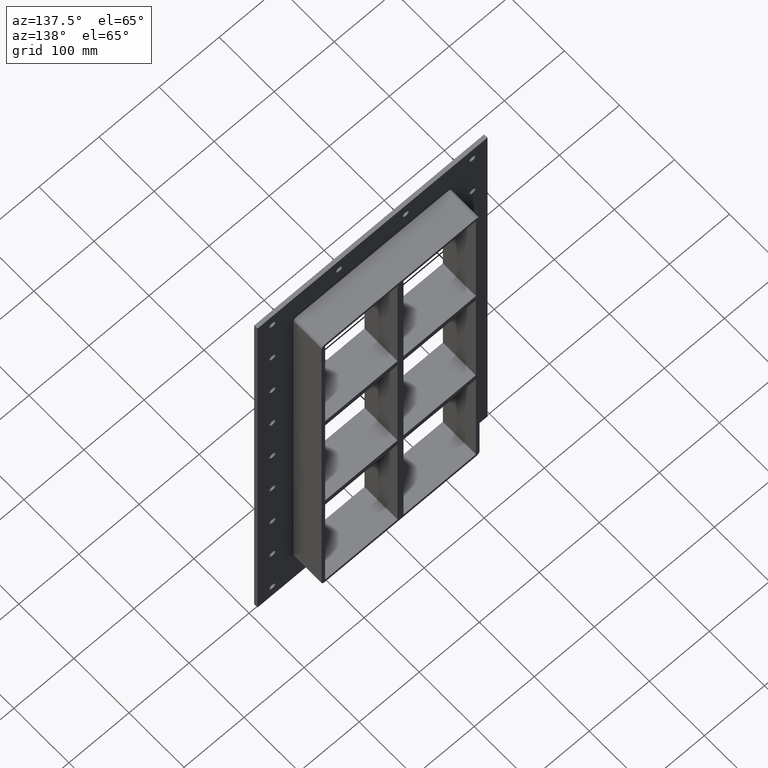
[diagram: clean part render]
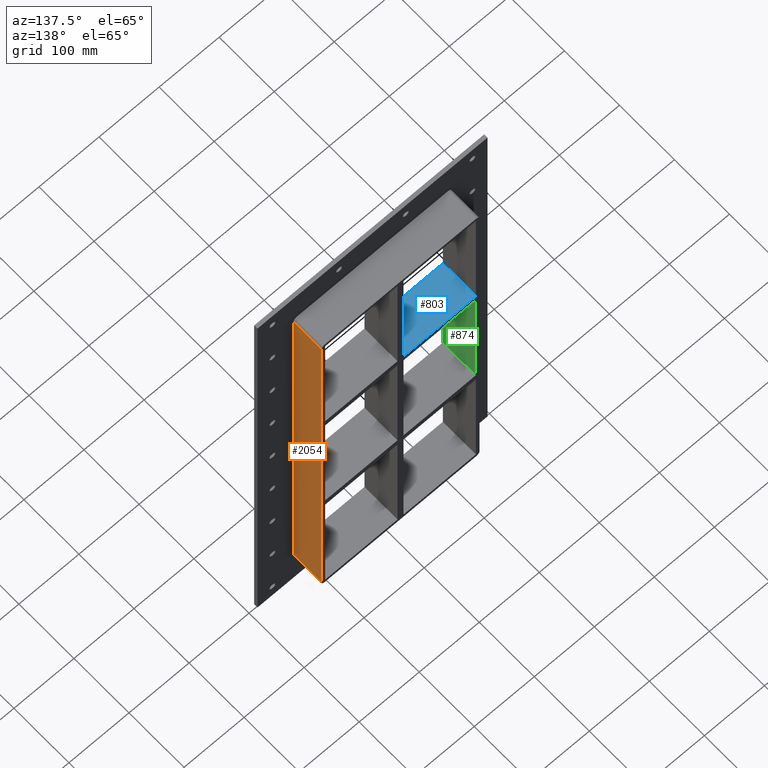
[diagram: same view with three faces highlighted in distinct colors, each labeled with its STEP entity id]
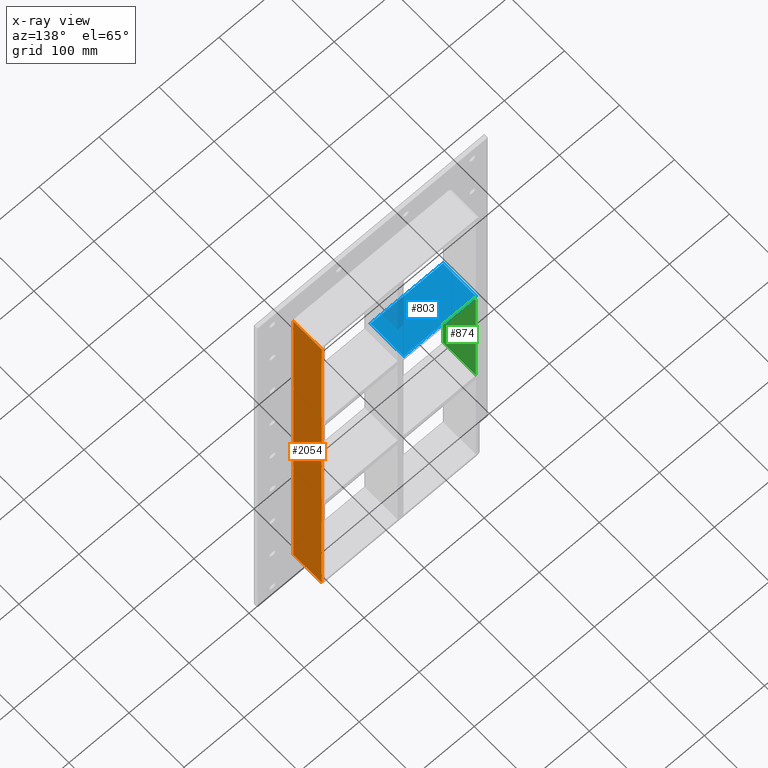
[diagram: x-ray of the same camera — body ghosted, the three highlighted faces saturated]
A machine part, auxiliary view with three faces highlighted in distinct colors.
The next image is the same camera in x-ray (body ghosted, the three faces saturated) — at least one of them is partly hidden behind the body in this view.
Their STEP definitions:

[orange] entity #2054 — the highlighted planar face has unit normal (1, 0, 0).
#1232=CARTESIAN_POINT('',(131.5,57.0,-339.0));
#1233=VERTEX_POINT('',#1232);
#1283=CARTESIAN_POINT('',(131.5,57.0,339.00000000000006));
#1284=VERTEX_POINT('',#1283);
#1292=CARTESIAN_POINT('',(131.5,57.0,339.00000000000006));
#1293=DIRECTION('',(0.0,0.0,-1.0));
#1294=VECTOR('',#1293,678.0);
#1295=LINE('',#1292,#1294);
#1296=EDGE_CURVE('',#1284,#1233,#1295,.T.);
#1647=CARTESIAN_POINT('',(131.5,6.000000000000001,-339.00000000000006));
#1648=VERTEX_POINT('',#1647);
#1656=CARTESIAN_POINT('',(131.5,6.000000000000001,339.00000000000006));
#1657=VERTEX_POINT('',#1656);
#1658=CARTESIAN_POINT('',(131.5,6.000000000000001,339.00000000000006));
#1659=DIRECTION('',(0.0,0.0,-1.0));
#1660=VECTOR('',#1659,678.0);
#1661=LINE('',#1658,#1660);
#1662=EDGE_CURVE('',#1657,#1648,#1661,.T.);
#1998=CARTESIAN_POINT('',(131.5,6.000000000000001,339.00000000000006));
#1999=DIRECTION('',(0.0,1.0,0.0));
#2000=VECTOR('',#1999,51.0);
#2001=LINE('',#1998,#2000);
#2002=EDGE_CURVE('',#1657,#1284,#2001,.T.);
#2038=CARTESIAN_POINT('',(131.5,0.0,345.00000000000006));
#2039=DIRECTION('',(1.0,0.0,0.0));
#2040=DIRECTION('',(0.0,0.0,-1.0));
#2041=AXIS2_PLACEMENT_3D('',#2038,#2039,#2040);
#2042=PLANE('',#2041);
#2043=ORIENTED_EDGE('',*,*,#1662,.T.);
#2044=CARTESIAN_POINT('',(131.5,57.0,-339.00000000000006));
#2045=DIRECTION('',(0.0,-1.0,0.0));
#2046=VECTOR('',#2045,51.0);
#2047=LINE('',#2044,#2046);
#2048=EDGE_CURVE('',#1233,#1648,#2047,.T.);
#2049=ORIENTED_EDGE('',*,*,#2048,.F.);
#2050=ORIENTED_EDGE('',*,*,#1296,.F.);
#2051=ORIENTED_EDGE('',*,*,#2002,.F.);
#2052=EDGE_LOOP('',(#2043,#2049,#2050,#2051));
#2053=FACE_OUTER_BOUND('',#2052,.T.);
#2054=ADVANCED_FACE('',(#2053),#2042,.T.);

[blue] entity #803 — the highlighted planar face has unit normal (0, 0, 1).
#764=CARTESIAN_POINT('',(-125.4999999999997,-3.0,120.99999999999994));
#765=DIRECTION('',(0.0,0.0,1.0));
#766=DIRECTION('',(1.0,0.0,0.0));
#767=AXIS2_PLACEMENT_3D('',#764,#765,#766);
#768=PLANE('',#767);
#769=CARTESIAN_POINT('',(-5.000000000001363,57.0,120.99999999999994));
#770=VERTEX_POINT('',#769);
#771=CARTESIAN_POINT('',(-5.000000000001368,-3.0,120.99999999999994));
#772=VERTEX_POINT('',#771);
#773=CARTESIAN_POINT('',(-5.000000000001359,57.0,120.99999999999994));
#774=DIRECTION('',(0.0,-1.0,0.0));
#775=VECTOR('',#774,60.0);
#776=LINE('',#773,#775);
#777=EDGE_CURVE('',#770,#772,#776,.T.);
#778=ORIENTED_EDGE('',*,*,#777,.F.);
#779=CARTESIAN_POINT('',(-125.4999999999997,57.0,120.99999999999994));
#780=VERTEX_POINT('',#779);
#781=CARTESIAN_POINT('',(-125.4999999999997,57.0,120.99999999999994));
#782=DIRECTION('',(1.0,0.0,0.0));
#783=VECTOR('',#782,120.49999999999834);
#784=LINE('',#781,#783);
#785=EDGE_CURVE('',#780,#770,#784,.T.);
#786=ORIENTED_EDGE('',*,*,#785,.F.);
#787=CARTESIAN_POINT('',(-125.4999999999997,-3.0,120.99999999999994));
#788=VERTEX_POINT('',#787);
#789=CARTESIAN_POINT('',(-125.5,-3.0,120.99999999999994));
#790=DIRECTION('',(0.0,1.0,0.0));
#791=VECTOR('',#790,60.000000000000007);
#792=LINE('',#789,#791);
#793=EDGE_CURVE('',#788,#780,#792,.T.);
#794=ORIENTED_EDGE('',*,*,#793,.F.);
#795=CARTESIAN_POINT('',(-125.4999999999997,-3.0,120.99999999999994));
#796=DIRECTION('',(1.0,0.0,0.0));
#797=VECTOR('',#796,120.49999999999834);
#798=LINE('',#795,#797);
#799=EDGE_CURVE('',#788,#772,#798,.T.);
#800=ORIENTED_EDGE('',*,*,#799,.T.);
#801=EDGE_LOOP('',(#778,#786,#794,#800));
#802=FACE_OUTER_BOUND('',#801,.T.);
#803=ADVANCED_FACE('',(#802),#768,.T.);

[green] entity #874 — the highlighted planar face has unit normal (-1, 0, 0).
#819=CARTESIAN_POINT('',(-125.4999999999997,-3.0,108.99999999999068));
#820=VERTEX_POINT('',#819);
#827=CARTESIAN_POINT('',(-125.4999999999997,57.0,108.99999999999068));
#828=VERTEX_POINT('',#827);
#829=CARTESIAN_POINT('',(-125.5,57.000000000000007,108.99999999999069));
#830=DIRECTION('',(0.0,-1.0,0.0));
#831=VECTOR('',#830,60.000000000000007);
#832=LINE('',#829,#831);
#833=EDGE_CURVE('',#828,#820,#832,.T.);
#844=CARTESIAN_POINT('',(-125.5,0.0,-339.00000000000006));
#845=DIRECTION('',(-1.0,0.0,0.0));
#846=DIRECTION('',(0.0,0.0,1.0));
#847=AXIS2_PLACEMENT_3D('',#844,#845,#846);
#848=PLANE('',#847);
#849=ORIENTED_EDGE('',*,*,#833,.T.);
#850=CARTESIAN_POINT('',(-125.4999999999997,-3.0,-109.00000000000006));
#851=VERTEX_POINT('',#850);
#852=CARTESIAN_POINT('',(-125.5,-3.0,-109.00000000000006));
#853=DIRECTION('',(0.0,0.0,1.0));
#854=VECTOR('',#853,217.99999999999071);
#855=LINE('',#852,#854);
#856=EDGE_CURVE('',#851,#820,#855,.T.);
#857=ORIENTED_EDGE('',*,*,#856,.F.);
#858=CARTESIAN_POINT('',(-125.4999999999997,57.0,-109.00000000000006));
#859=VERTEX_POINT('',#858);
#860=CARTESIAN_POINT('',(-125.5,-3.0,-109.00000000000006));
#861=DIRECTION('',(0.0,1.0,0.0));
#862=VECTOR('',#861,60.000000000000007);
#863=LINE('',#860,#862);
#864=EDGE_CURVE('',#851,#859,#863,.T.);
#865=ORIENTED_EDGE('',*,*,#864,.T.);
#866=CARTESIAN_POINT('',(-125.5,57.0,108.99999999999065));
#867=DIRECTION('',(0.0,0.0,-1.0));
#868=VECTOR('',#867,217.99999999999071);
#869=LINE('',#866,#868);
#870=EDGE_CURVE('',#828,#859,#869,.T.);
#871=ORIENTED_EDGE('',*,*,#870,.F.);
#872=EDGE_LOOP('',(#849,#857,#865,#871));
#873=FACE_OUTER_BOUND('',#872,.T.);
#874=ADVANCED_FACE('',(#873),#848,.F.);